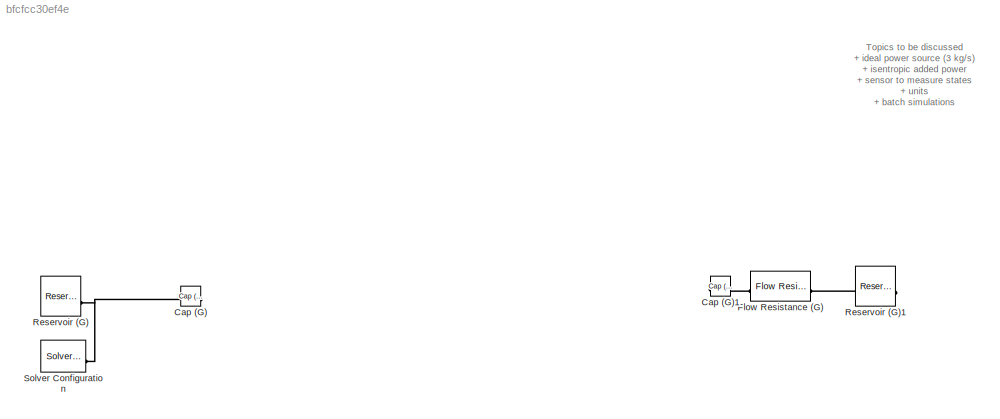
MODEL slx_bfcfcc30ef4e
KIND model
CONFIG AbsTol = 1e-3
CONFIG EnableMultiTasking = off
CONFIG FixedStep = auto
CONFIG MaxStep = auto
CONFIG MinStep = auto
CONFIG PreLoadFcn = NPressureDrop = (2.0 - 1)*0.101325;
CONFIG RelTol = 1e-3
CONFIG SampleTimeConstraint = Unconstrained
CONFIG SolverName = VariableStepAuto
CONFIG StartTime = 0.0
CONFIG StopTime = 10.0
BLOCK [Reference] Cap (G)  REF=fl_lib/Gas/Elements/Cap (G)
  NameLocation = top
  SourceBlock = fl_lib/Gas/Elements/Cap (G)
  SourceType = Cap (G)
BLOCK [Reference] Cap (G)1  REF=fl_lib/Gas/Elements/Cap (G)
  NameLocation = top
  SourceBlock = fl_lib/Gas/Elements/Cap (G)
  SourceType = Cap (G)
BLOCK [Reference] Flow Resistance (G)  REF=fl_lib/Gas/Elements/Flow Resistance (G)
  SourceBlock = fl_lib/Gas/Elements/Flow Resistance (G)
  SourceType = Flow Resistance (G)
BLOCK [Reference] Reservoir (G)  REF=fl_lib/Gas/Elements/Reservoir (G)
  SourceBlock = fl_lib/Gas/Elements/Reservoir (G)
  SourceType = Reservoir (G)
BLOCK [Reference] Reservoir (G)1  REF=fl_lib/Gas/Elements/Reservoir (G)
  NameLocation = top
  SourceBlock = fl_lib/Gas/Elements/Reservoir (G)
  SourceType = Reservoir (G)
BLOCK [Reference] Solver Configuration  REF=nesl_utility/Solver
Configuration
  SourceBlock = nesl_utility/Solver\nConfiguration
  SourceType = Solver\nConfiguration
ANNOTATION (root): Topics to be discussed + ideal power source (3 kg/s) + isentropic added power + sensor to measure states + units + batch simulations
PLINE Cap (G)1:LConn1 -- Flow Resistance (G):LConn1
PNET net1: Cap (G):LConn1 -- Reservoir (G):LConn1 -- Solver Configuration:RConn1
PLINE Flow Resistance (G):RConn1 -- Reservoir (G)1:LConn1
note: PNET lines group multi-terminal physical nets as a canonical sorted terminal list (undirected conserving connections); 2-terminal nets keep the pairwise PLINE form
